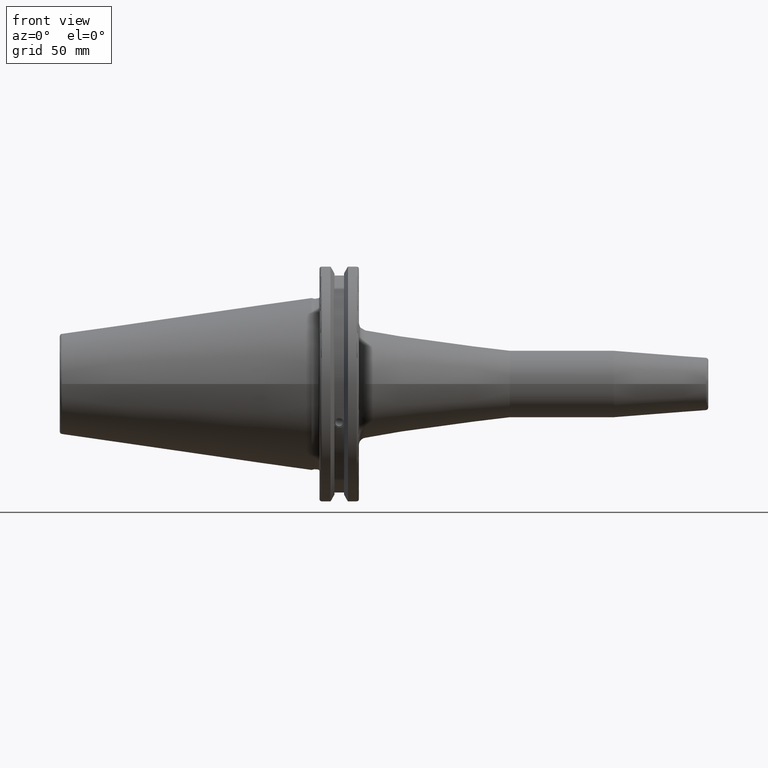
[diagram: clean part render]
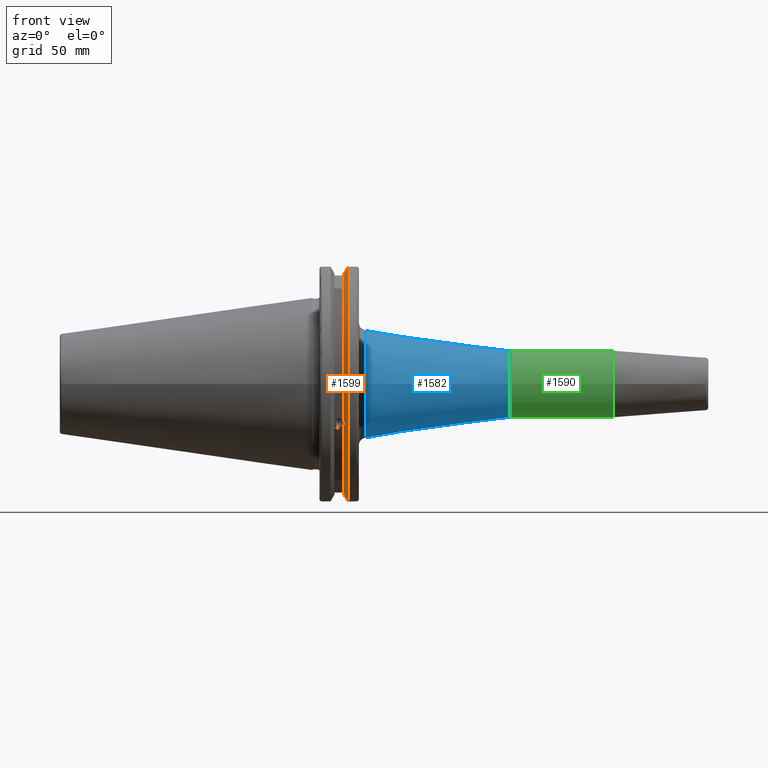
[diagram: same view with three faces highlighted in distinct colors, each labeled with its STEP entity id]
A machine part, front view with three faces highlighted in distinct colors.
Their STEP definitions:

[orange] entity #1599 — the highlighted conical surface has half-angle 60 deg.
#15=(
BOUNDED_CURVE()
B_SPLINE_CURVE(2,(#2703,#2704,#2705),.UNSPECIFIED.,.F.,.F.)
B_SPLINE_CURVE_WITH_KNOTS((3,3),(0.,0.275823910673374),.UNSPECIFIED.)
CURVE()
GEOMETRIC_REPRESENTATION_ITEM()
RATIONAL_B_SPLINE_CURVE((1.,1.00038235574978,1.00012873636953))
REPRESENTATION_ITEM('')
);
#16=(
BOUNDED_CURVE()
B_SPLINE_CURVE(2,(#2707,#2708,#2709),.UNSPECIFIED.,.F.,.F.)
B_SPLINE_CURVE_WITH_KNOTS((3,3),(0.,0.0648240472896156),.UNSPECIFIED.)
CURVE()
GEOMETRIC_REPRESENTATION_ITEM()
RATIONAL_B_SPLINE_CURVE((1.,1.00011477674884,1.00019140646027))
REPRESENTATION_ITEM('')
);
#17=(
BOUNDED_CURVE()
B_SPLINE_CURVE(2,(#2713,#2714,#2715),.UNSPECIFIED.,.F.,.F.)
B_SPLINE_CURVE_WITH_KNOTS((3,3),(0.325260944932494,0.3900849922222),
 .UNSPECIFIED.)
CURVE()
GEOMETRIC_REPRESENTATION_ITEM()
RATIONAL_B_SPLINE_CURVE((1.00019140645961,1.00011477674844,1.))
REPRESENTATION_ITEM('')
);
#18=(
BOUNDED_CURVE()
B_SPLINE_CURVE(2,(#2717,#2718,#2719),.UNSPECIFIED.,.F.,.F.)
B_SPLINE_CURVE_WITH_KNOTS((3,3),(0.0558332664531015,0.331657177124503),
 .UNSPECIFIED.)
CURVE()
GEOMETRIC_REPRESENTATION_ITEM()
RATIONAL_B_SPLINE_CURVE((1.00012873636668,1.00038235574129,1.))
REPRESENTATION_ITEM('')
);
#105=B_SPLINE_CURVE_WITH_KNOTS('',3,(#2613,#2614,#2615,#2616,#2617,#2618,
#2619,#2620),.UNSPECIFIED.,.F.,.F.,(4,2,2,4),(0.42671286835872,0.441644498666905,
0.480313313223129,0.518982127779353),.UNSPECIFIED.);
#109=B_SPLINE_CURVE_WITH_KNOTS('',3,(#2675,#2676,#2677,#2678,#2679,#2680,
#2681,#2682),.UNSPECIFIED.,.F.,.F.,(4,2,2,4),(0.518982127779353,0.557650942335576,
0.5963197568918,0.611251387199985),.UNSPECIFIED.);
#200=FACE_OUTER_BOUND('',#301,.T.);
#301=EDGE_LOOP('',(#1208,#1209,#1210,#1211,#1212,#1213,#1214,#1215,#1216));
#610=CIRCLE('',#1754,46.4219772964944);
#611=CIRCLE('',#1755,49.2125);
#612=CIRCLE('',#1756,46.4219772964944);
#709=VERTEX_POINT('',#2610);
#710=VERTEX_POINT('',#2612);
#717=VERTEX_POINT('',#2673);
#723=VERTEX_POINT('',#2700);
#724=VERTEX_POINT('',#2702);
#725=VERTEX_POINT('',#2706);
#726=VERTEX_POINT('',#2710);
#727=VERTEX_POINT('',#2712);
#728=VERTEX_POINT('',#2716);
#890=EDGE_CURVE('',#710,#709,#105,.T.);
#898=EDGE_CURVE('',#709,#717,#109,.T.);
#906=EDGE_CURVE('',#717,#723,#610,.T.);
#907=EDGE_CURVE('',#723,#724,#15,.T.);
#908=EDGE_CURVE('',#725,#724,#16,.T.);
#909=EDGE_CURVE('',#726,#725,#611,.T.);
#910=EDGE_CURVE('',#727,#726,#17,.T.);
#911=EDGE_CURVE('',#727,#728,#18,.T.);
#912=EDGE_CURVE('',#728,#710,#612,.T.);
#1208=ORIENTED_EDGE('',*,*,#890,.T.);
#1209=ORIENTED_EDGE('',*,*,#898,.T.);
#1210=ORIENTED_EDGE('',*,*,#906,.T.);
#1211=ORIENTED_EDGE('',*,*,#907,.T.);
#1212=ORIENTED_EDGE('',*,*,#908,.F.);
#1213=ORIENTED_EDGE('',*,*,#909,.F.);
#1214=ORIENTED_EDGE('',*,*,#910,.F.);
#1215=ORIENTED_EDGE('',*,*,#911,.T.);
#1216=ORIENTED_EDGE('',*,*,#912,.T.);
#1561=CONICAL_SURFACE('',#1753,47.8172386482472,1.0471975511966);
#1599=ADVANCED_FACE('',(#200),#1561,.T.);
#1753=AXIS2_PLACEMENT_3D('',#2699,#2034,#2035);
#1754=AXIS2_PLACEMENT_3D('',#2701,#2036,#2037);
#1755=AXIS2_PLACEMENT_3D('',#2711,#2038,#2039);
#1756=AXIS2_PLACEMENT_3D('',#2720,#2040,#2041);
#2034=DIRECTION('center_axis',(1.,0.,0.));
#2035=DIRECTION('ref_axis',(0.,-1.,-1.22464679914735E-16));
#2036=DIRECTION('center_axis',(1.,0.,0.));
#2037=DIRECTION('ref_axis',(0.,0.,-1.));
#2038=DIRECTION('center_axis',(1.,0.,0.));
#2039=DIRECTION('ref_axis',(0.,0.,-1.));
#2040=DIRECTION('center_axis',(1.,0.,0.));
#2041=DIRECTION('ref_axis',(0.,0.,-1.));
#2610=CARTESIAN_POINT('',(13.2341,-43.923494649906,-15.9868446375166));
#2612=CARTESIAN_POINT('',(13.0491,-43.9096390749305,-15.0646464421033));
#2613=CARTESIAN_POINT('Ctrl Pts',(13.0491,-43.9096390749305,-15.0646464421033));
#2614=CARTESIAN_POINT('Ctrl Pts',(13.0660815609661,-43.9250360001461,-15.1104047527575));
#2615=CARTESIAN_POINT('Ctrl Pts',(13.0821132459668,-43.9385582852181,-15.1564111356409));
#2616=CARTESIAN_POINT('Ctrl Pts',(13.1358132615496,-43.9797830409459,-15.3217566390708));
#2617=CARTESIAN_POINT('Ctrl Pts',(13.1719838933644,-43.9989016655819,-15.4570249042868));
#2618=CARTESIAN_POINT('Ctrl Pts',(13.2212913174802,-43.9931221605126,-15.7289849146254));
#2619=CARTESIAN_POINT('Ctrl Pts',(13.2341,-43.9675796948952,-15.8657219718732));
#2620=CARTESIAN_POINT('Ctrl Pts',(13.2341,-43.923494649906,-15.9868446375166));
#2673=CARTESIAN_POINT('',(13.0491,-43.3201030900029,-16.6843832486479));
#2675=CARTESIAN_POINT('Ctrl Pts',(13.2341,-43.923494649906,-15.9868446375166));
#2676=CARTESIAN_POINT('Ctrl Pts',(13.2341,-43.8794096049169,-16.10796730316));
#2677=CARTESIAN_POINT('Ctrl Pts',(13.2212913174802,-43.8110833825827,-16.2291323464527));
#2678=CARTESIAN_POINT('Ctrl Pts',(13.1719838933644,-43.6406982153492,-16.441180795372));
#2679=CARTESIAN_POINT('Ctrl Pts',(13.1358132615496,-43.5391037343221,-16.5325130832406));
#2680=CARTESIAN_POINT('Ctrl Pts',(13.0821132459668,-43.4012416983557,-16.6326763251437));
#2681=CARTESIAN_POINT('Ctrl Pts',(13.0660815609661,-43.3613106941341,-16.6592273018006));
#2682=CARTESIAN_POINT('Ctrl Pts',(13.0491,-43.3201030900029,-16.6843832486479));
#2699=CARTESIAN_POINT('Origin',(13.8546545170244,0.,0.));
#2700=CARTESIAN_POINT('',(13.0491,-12.95,-44.5791147973604));
#2701=CARTESIAN_POINT('Origin',(13.0491,0.,0.));
#2702=CARTESIAN_POINT('',(14.3818103943757,-12.95,-46.9780755322917));
#2703=CARTESIAN_POINT('Ctrl Pts',(13.0491,-12.95,-44.5791147973604));
#2704=CARTESIAN_POINT('Ctrl Pts',(13.697995509466,-12.95,-45.749496680259));
#2705=CARTESIAN_POINT('Ctrl Pts',(14.3818103943757,-12.95,-46.9780755322917));
#2706=CARTESIAN_POINT('',(14.6602090340487,-13.4317035994433,-47.3440544806494));
#2707=CARTESIAN_POINT('Ctrl Pts',(14.6602090340487,-13.4317035994433,-47.3440544806494));
#2708=CARTESIAN_POINT('Ctrl Pts',(14.5199310333617,-13.1896660169964,-47.1601640966263));
#2709=CARTESIAN_POINT('Ctrl Pts',(14.3818103943757,-12.95,-46.9780755322917));
#2710=CARTESIAN_POINT('',(14.6602090340487,-13.4317035994433,47.3440544806494));
#2711=CARTESIAN_POINT('Origin',(14.6602090340487,0.,0.));
#2712=CARTESIAN_POINT('',(14.3818103943757,-12.95,46.9780755322918));
#2713=CARTESIAN_POINT('Ctrl Pts',(14.3818103943757,-12.95,46.9780755322918));
#2714=CARTESIAN_POINT('Ctrl Pts',(14.5199310333617,-13.1896660169966,47.1601640966264));
#2715=CARTESIAN_POINT('Ctrl Pts',(14.6602090340487,-13.4317035994433,47.3440544806494));
#2716=CARTESIAN_POINT('',(13.0491,-12.95,44.5791147973604));
#2717=CARTESIAN_POINT('Ctrl Pts',(14.3818103943757,-12.95,46.9780755322918));
#2718=CARTESIAN_POINT('Ctrl Pts',(13.6979955094846,-12.95,45.7494966802924));
#2719=CARTESIAN_POINT('Ctrl Pts',(13.0491,-12.95,44.5791147973604));
#2720=CARTESIAN_POINT('Origin',(13.0491,0.,0.));

[blue] entity #1582 — the highlighted conical surface has half-angle 8 deg.
#183=FACE_OUTER_BOUND('',#277,.T.);
#277=EDGE_LOOP('',(#1122,#1123,#1124,#1125,#1126));
#385=LINE('',#2418,#484);
#484=VECTOR('',#1946,17.7829819375554);
#591=CIRCLE('',#1716,21.7030198823347);
#594=CIRCLE('',#1719,21.7030198823347);
#595=CIRCLE('',#1721,13.5);
#678=VERTEX_POINT('',#2408);
#679=VERTEX_POINT('',#2409);
#681=VERTEX_POINT('',#2416);
#849=EDGE_CURVE('',#678,#679,#591,.T.);
#852=EDGE_CURVE('',#679,#678,#594,.T.);
#853=EDGE_CURVE('',#681,#681,#595,.T.);
#854=EDGE_CURVE('',#681,#678,#385,.T.);
#1122=ORIENTED_EDGE('',*,*,#853,.F.);
#1123=ORIENTED_EDGE('',*,*,#854,.T.);
#1124=ORIENTED_EDGE('',*,*,#852,.F.);
#1125=ORIENTED_EDGE('',*,*,#849,.F.);
#1126=ORIENTED_EDGE('',*,*,#854,.F.);
#1558=CONICAL_SURFACE('',#1720,17.7829819375554,0.139626340159547);
#1582=ADVANCED_FACE('',(#183),#1558,.T.);
#1716=AXIS2_PLACEMENT_3D('',#2410,#1934,#1935);
#1719=AXIS2_PLACEMENT_3D('',#2414,#1940,#1941);
#1720=AXIS2_PLACEMENT_3D('',#2415,#1942,#1943);
#1721=AXIS2_PLACEMENT_3D('',#2417,#1944,#1945);
#1934=DIRECTION('center_axis',(-1.,0.,0.));
#1935=DIRECTION('ref_axis',(0.,-1.,-1.22464679914735E-16));
#1940=DIRECTION('center_axis',(-1.,0.,0.));
#1941=DIRECTION('ref_axis',(0.,-1.,-1.22464679914735E-16));
#1942=DIRECTION('center_axis',(-1.,0.,0.));
#1943=DIRECTION('ref_axis',(0.,1.,0.));
#1944=DIRECTION('center_axis',(1.,0.,0.));
#1945=DIRECTION('ref_axis',(0.,0.,-1.));
#1946=DIRECTION('',(-0.99026806874157,-0.139173100960066,-1.70437892618156E-17));
#2408=CARTESIAN_POINT('',(21.6324806971198,-21.7030198823347,-2.65785338307326E-15));
#2409=CARTESIAN_POINT('',(21.6324806971198,-2.65785338307326E-15,-21.7030198823347));
#2410=CARTESIAN_POINT('Origin',(21.6324806971198,0.,0.));
#2414=CARTESIAN_POINT('Origin',(21.6324806971198,0.,0.));
#2415=CARTESIAN_POINT('Origin',(49.525,0.,0.));
#2416=CARTESIAN_POINT('',(80.,-13.5,-1.65327317884893E-15));
#2417=CARTESIAN_POINT('Origin',(80.,0.,0.));
#2418=CARTESIAN_POINT('',(49.525,-17.7829819375554,-2.17778719091224E-15));

[green] entity #1590 — the highlighted cylindrical surface (bore or boss wall) has radius 13.5 mm, axis along (1, 0, 0).
#149=CYLINDRICAL_SURFACE('',#1738,13.5);
#191=FACE_OUTER_BOUND('',#288,.T.);
#288=EDGE_LOOP('',(#1162,#1163,#1164,#1165));
#400=LINE('',#2469,#499);
#499=VECTOR('',#1995,13.5);
#590=CIRCLE('',#1714,13.5);
#595=CIRCLE('',#1721,13.5);
#677=VERTEX_POINT('',#2404);
#681=VERTEX_POINT('',#2416);
#848=EDGE_CURVE('',#677,#677,#590,.T.);
#853=EDGE_CURVE('',#681,#681,#595,.T.);
#878=EDGE_CURVE('',#677,#681,#400,.T.);
#1162=ORIENTED_EDGE('',*,*,#848,.F.);
#1163=ORIENTED_EDGE('',*,*,#878,.T.);
#1164=ORIENTED_EDGE('',*,*,#853,.T.);
#1165=ORIENTED_EDGE('',*,*,#878,.F.);
#1590=ADVANCED_FACE('',(#191),#149,.T.);
#1714=AXIS2_PLACEMENT_3D('',#2406,#1930,#1931);
#1721=AXIS2_PLACEMENT_3D('',#2417,#1944,#1945);
#1738=AXIS2_PLACEMENT_3D('',#2468,#1993,#1994);
#1930=DIRECTION('center_axis',(1.,0.,0.));
#1931=DIRECTION('ref_axis',(0.,0.,-1.));
#1944=DIRECTION('center_axis',(1.,0.,0.));
#1945=DIRECTION('ref_axis',(0.,0.,-1.));
#1993=DIRECTION('center_axis',(1.,0.,0.));
#1994=DIRECTION('ref_axis',(0.,1.,0.));
#1995=DIRECTION('',(-1.,0.,0.));
#2404=CARTESIAN_POINT('',(121.881385791476,-13.5,-1.65327317884893E-15));
#2406=CARTESIAN_POINT('Origin',(121.881385791476,0.,0.));
#2416=CARTESIAN_POINT('',(80.,-13.5,-1.65327317884893E-15));
#2417=CARTESIAN_POINT('Origin',(80.,0.,0.));
#2468=CARTESIAN_POINT('Origin',(100.940692895738,0.,0.));
#2469=CARTESIAN_POINT('',(100.940692895738,-13.5,-1.65327317884893E-15));